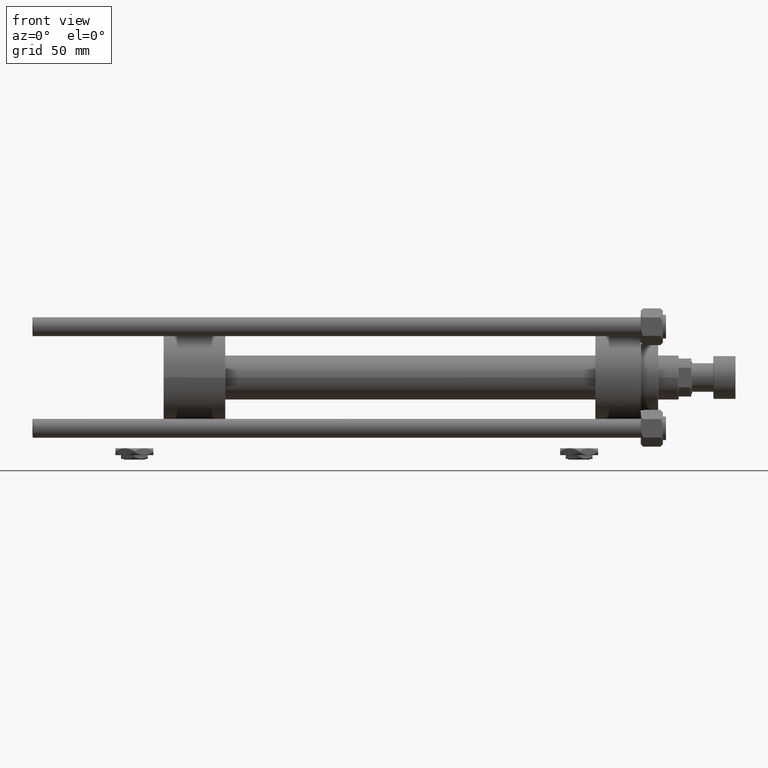
[diagram: clean part render]
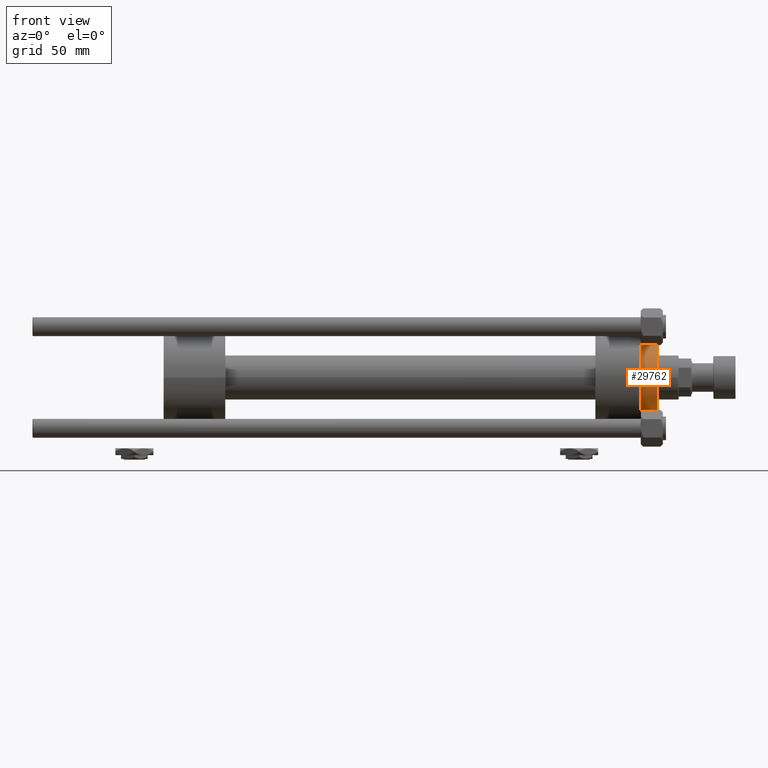
[diagram: same view with one face highlighted and labeled with its STEP entity id]
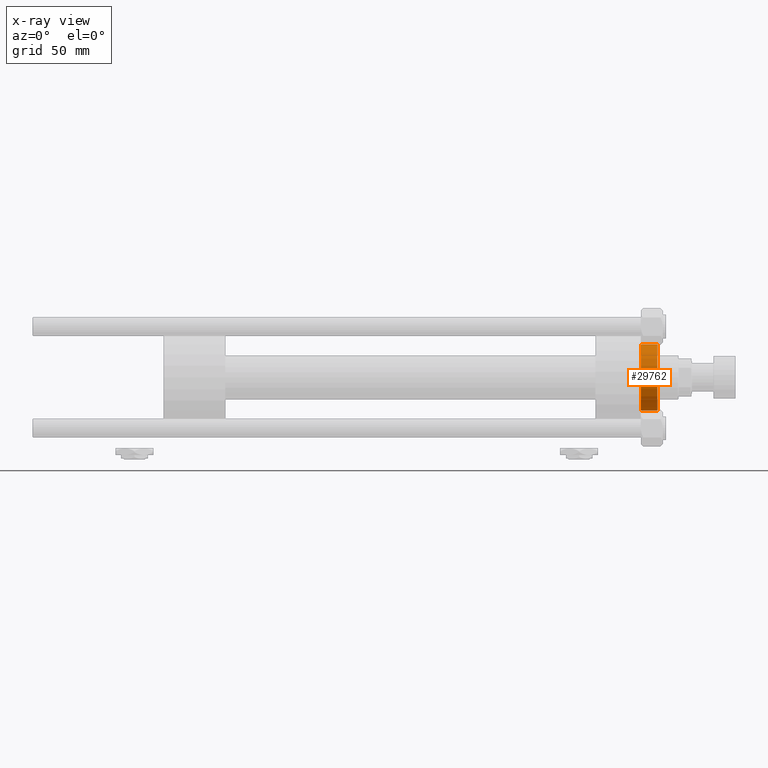
[diagram: x-ray of the same camera — body ghosted, the highlighted face saturated]
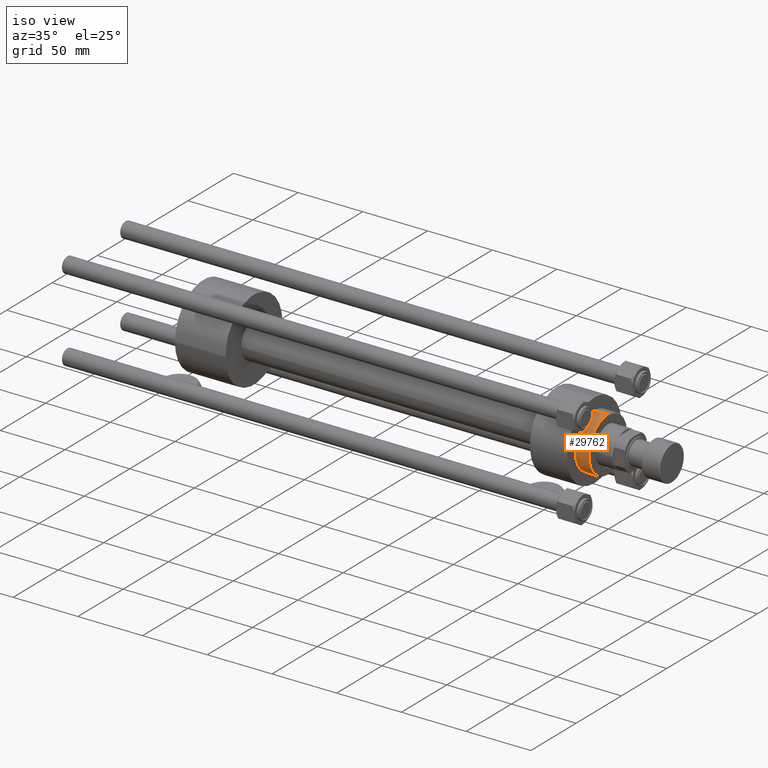
[diagram: same view with one face highlighted and labeled with its STEP entity id]
A machine part, front view. The second image highlights one B-rep face of the part: STEP entity #29762.
The next image is the same camera in x-ray: the body ghosted, the highlighted face saturated — about 0% of this face is hidden behind the body in this view.
A second angle (iso view) of the same face is appended — the face is thin or edge-on in the first view.
In plain terms, the highlighted cylindrical surface (edge-blend (fillet) strip) has radius 21 mm, axis along (-1, -0, 0).
Its self-contained STEP definition (entity closure, byte-faithful):
#19 = ORIENTED_EDGE ( 'NONE', *, *, #41653, .T. ) ;
#624 = ORIENTED_EDGE ( 'NONE', *, *, #10529, .F. ) ;
#1836 = CARTESIAN_POINT ( 'NONE',  ( 21.00000000000000000, 2.571758278209441661E-15, 28.69999999999999929 ) ) ;
#3037 = CIRCLE ( 'NONE', #32589, 21.00000000000000000 ) ;
#3234 = DIRECTION ( 'NONE',  ( -0.000000000000000000, -0.000000000000000000, -1.000000000000000000 ) ) ;
#3617 = DIRECTION ( 'NONE',  ( 1.000000000000000000, 0.000000000000000000, 0.000000000000000000 ) ) ;
#5437 = CIRCLE ( 'NONE', #34112, 21.00000000000000000 ) ;
#7253 = ORIENTED_EDGE ( 'NONE', *, *, #35809, .T. ) ;
#10529 = EDGE_CURVE ( 'NONE', #31537, #48913, #14462, .T. ) ;
#10878 = LINE ( 'NONE', #38911, #17993 ) ;
#11291 = CARTESIAN_POINT ( 'NONE',  ( 0.000000000000000000, 0.000000000000000000, 28.69999999999999929 ) ) ;
#12544 = AXIS2_PLACEMENT_3D ( 'NONE', #38930, #3234, #27276 ) ;
#14462 = LINE ( 'NONE', #39047, #34059 ) ;
#16335 = CARTESIAN_POINT ( 'NONE',  ( -21.00000000000000000, 0.000000000000000000, 39.19999999999999574 ) ) ;
#17993 = VECTOR ( 'NONE', #34422, 1000.000000000000000 ) ;
#20133 = VERTEX_POINT ( 'NONE', #34586 ) ;
#20279 = EDGE_CURVE ( 'NONE', #20133, #48913, #3037, .T. ) ;
#20324 = CARTESIAN_POINT ( 'NONE',  ( 0.000000000000000000, 0.000000000000000000, 39.19999999999999574 ) ) ;
#20497 = CARTESIAN_POINT ( 'NONE',  ( 21.00000000000000000, 2.571758278209441661E-15, 39.19999999999999574 ) ) ;
#24159 = ORIENTED_EDGE ( 'NONE', *, *, #20279, .T. ) ;
#27020 = FACE_OUTER_BOUND ( 'NONE', #45206, .T. ) ;
#27276 = DIRECTION ( 'NONE',  ( -1.000000000000000000, 0.000000000000000000, 0.000000000000000000 ) ) ;
#28053 = VERTEX_POINT ( 'NONE', #16335 ) ;
#29762 = ADVANCED_FACE ( 'NONE', ( #27020 ), #46874, .T. ) ;
#31537 = VERTEX_POINT ( 'NONE', #20497 ) ;
#32589 = AXIS2_PLACEMENT_3D ( 'NONE', #11291, #35888, #3617 ) ;
#34059 = VECTOR ( 'NONE', #34816, 1000.000000000000000 ) ;
#34112 = AXIS2_PLACEMENT_3D ( 'NONE', #20324, #36456, #43153 ) ;
#34422 = DIRECTION ( 'NONE',  ( -0.000000000000000000, -0.000000000000000000, -1.000000000000000000 ) ) ;
#34586 = CARTESIAN_POINT ( 'NONE',  ( -21.00000000000000000, 0.000000000000000000, 28.69999999999999929 ) ) ;
#34816 = DIRECTION ( 'NONE',  ( -0.000000000000000000, -0.000000000000000000, -1.000000000000000000 ) ) ;
#35809 = EDGE_CURVE ( 'NONE', #28053, #20133, #10878, .T. ) ;
#35888 = DIRECTION ( 'NONE',  ( 0.000000000000000000, 0.000000000000000000, 1.000000000000000000 ) ) ;
#36456 = DIRECTION ( 'NONE',  ( 0.000000000000000000, 0.000000000000000000, -1.000000000000000000 ) ) ;
#38911 = CARTESIAN_POINT ( 'NONE',  ( -21.00000000000000000, 0.000000000000000000, 39.69999999999999574 ) ) ;
#38930 = CARTESIAN_POINT ( 'NONE',  ( 0.000000000000000000, 0.000000000000000000, 39.69999999999999574 ) ) ;
#39047 = CARTESIAN_POINT ( 'NONE',  ( 21.00000000000000000, 2.571758278209441661E-15, 39.69999999999999574 ) ) ;
#41653 = EDGE_CURVE ( 'NONE', #31537, #28053, #5437, .T. ) ;
#43153 = DIRECTION ( 'NONE',  ( 1.000000000000000000, 0.000000000000000000, 0.000000000000000000 ) ) ;
#45206 = EDGE_LOOP ( 'NONE', ( #624, #19, #7253, #24159 ) ) ;
#46874 = CYLINDRICAL_SURFACE ( 'NONE', #12544, 21.00000000000000000 ) ;
#48913 = VERTEX_POINT ( 'NONE', #1836 ) ;